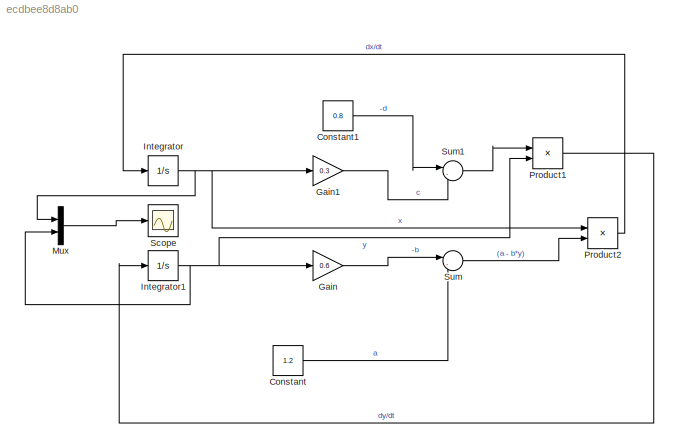
MODEL slx_ecdbee8d8ab0
KIND model
CONFIG AbsTol = auto
CONFIG EnableMultiTasking = off
CONFIG FixedStep = auto
CONFIG MaxStep = auto
CONFIG MinStep = auto
CONFIG RelTol = 1e-3
CONFIG SampleTimeConstraint = Unconstrained
CONFIG SolverName = VariableStepAuto
CONFIG StartTime = 0.0
CONFIG StopTime = 10.0
BLOCK [Constant] Constant
  Value = 1.2
BLOCK [Constant] Constant1
  Value = 0.8
BLOCK [Gain] Gain
  Gain = 0.6
BLOCK [Gain] Gain1
  Gain = 0.3
BLOCK [Integrator] Integrator
  InitialCondition = 2
BLOCK [Integrator] Integrator1
  InitialCondition = 1
BLOCK [Mux] Mux
  DisplayOption = bar
  Inputs = 2
BLOCK [Product] Product1
BLOCK [Product] Product2
BLOCK [Scope] Scope
  Floating = off
  NumInputPorts = 1
  ScopeSpecificationString = Simulink.scopes.TimeScopeBlockCfg('CurrentConfiguration', extmgr.ConfigurationSet(extmgr.Configuration('Core','General UI',true),extmgr.Configuration('Core','Source UI',true),extmgr.Configuration('Sources','WiredSimulink',true),extmgr.Configuration('Visuals','Time Domain',true,'SerializedDisplays',{struct('MinYLimReal','0.39151','MaxYLimReal','5.99947','YLabelReal','','MinYLimMag','0.39151','MaxYL...<+1412ch>
BLOCK [Sum] Sum
  Inputs = |-+
BLOCK [Sum] Sum1
  Inputs = |-+
LINE Constant1:1 -> Sum1:1
LINE Constant:1 -> Sum:2
LINE Gain1:1 -> Sum1:2
LINE Gain:1 -> Sum:1
NET Integrator1:1 -> Gain:1, Mux:2, Product1:2
NET Integrator:1 -> Gain1:1, Mux:1, Product2:1
LINE Mux:1 -> Scope:1
LINE Product1:1 -> Integrator1:1
LINE Product2:1 -> Integrator:1
LINE Sum1:1 -> Product1:1
LINE Sum:1 -> Product2:2
note: NET lines group one-source signal fan-out (src -> all destinations, sorted); 1:1 wires keep LINE
